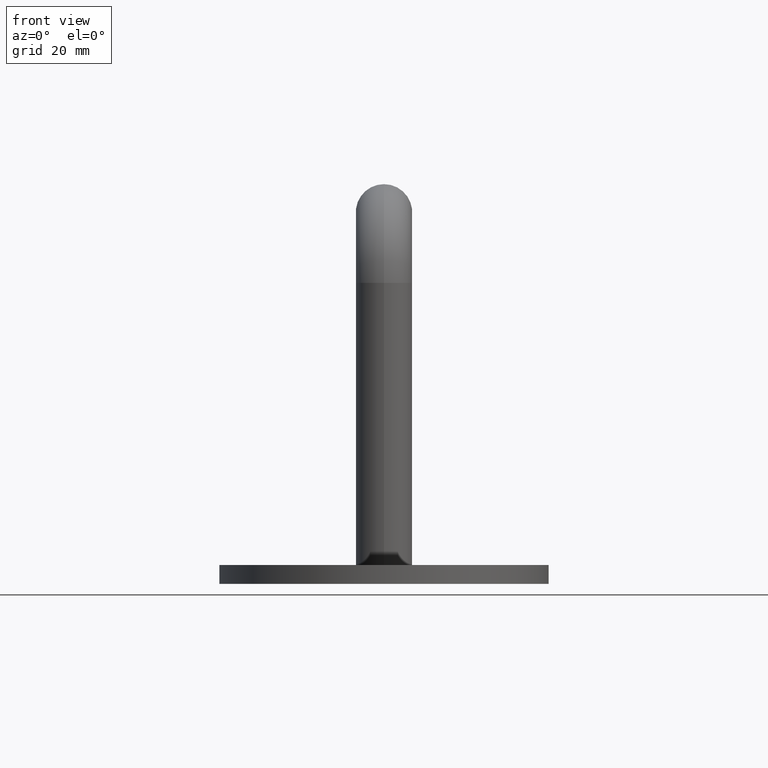
[diagram: clean part render]
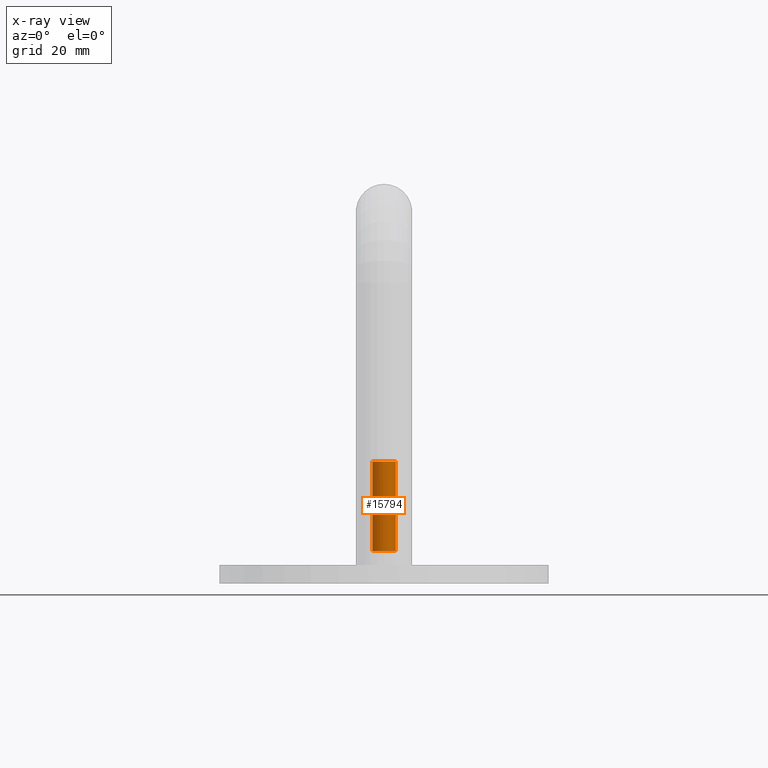
[diagram: x-ray — body ghosted, one internal face saturated and labeled with its STEP entity id]
A machine part, front view, then the same camera in x-ray: the body is ghosted and one INTERNAL B-rep face — a face not visible from any outside direction — is saturated and labeled: STEP entity #15794.
In plain terms, the highlighted cylindrical surface (edge-blend (fillet) strip) has radius 2.5 mm, axis along (-0, -0, -1).
Its self-contained STEP definition (entity closure, byte-faithful):
#99 = CARTESIAN_POINT ( 'NONE',  ( 0.000000000000000000, 0.000000000000000000, 3.000000000000009770 ) ) ;
#601 = CIRCLE ( 'NONE', #2816, 2.499999999999992895 ) ;
#1072 = AXIS2_PLACEMENT_3D ( 'NONE', #5715, #6964, #15582 ) ;
#1482 = VERTEX_POINT ( 'NONE', #16423 ) ;
#1523 = DIRECTION ( 'NONE',  ( 0.000000000000000000, 0.000000000000000000, 1.000000000000000000 ) ) ;
#2816 = AXIS2_PLACEMENT_3D ( 'NONE', #99, #1523, #15815 ) ;
#3683 = CIRCLE ( 'NONE', #1072, 2.499999999999994671 ) ;
#4253 = CARTESIAN_POINT ( 'NONE',  ( -2.499999999999992895, 0.000000000000000000, 3.000000000000009770 ) ) ;
#5020 = FACE_OUTER_BOUND ( 'NONE', #7866, .T. ) ;
#5124 = VERTEX_POINT ( 'NONE', #17115 ) ;
#5454 = ORIENTED_EDGE ( 'NONE', *, *, #17143, .T. ) ;
#5468 = DIRECTION ( 'NONE',  ( -0.000000000000000000, -0.000000000000000000, -1.000000000000000000 ) ) ;
#5686 = CYLINDRICAL_SURFACE ( 'NONE', #9461, 2.499999999999992895 ) ;
#5715 = CARTESIAN_POINT ( 'NONE',  ( 0.000000000000000000, 0.000000000000000000, 22.00000000000000000 ) ) ;
#6964 = DIRECTION ( 'NONE',  ( -0.000000000000000000, -0.000000000000000000, -1.000000000000000000 ) ) ;
#7866 = EDGE_LOOP ( 'NONE', ( #16270, #5454, #10049, #10561 ) ) ;
#7965 = VECTOR ( 'NONE', #12237, 1000.000000000000000 ) ;
#8472 = VERTEX_POINT ( 'NONE', #4253 ) ;
#9461 = AXIS2_PLACEMENT_3D ( 'NONE', #10160, #11571, #11637 ) ;
#10025 = EDGE_CURVE ( 'NONE', #5124, #8472, #17748, .T. ) ;
#10049 = ORIENTED_EDGE ( 'NONE', *, *, #16813, .F. ) ;
#10160 = CARTESIAN_POINT ( 'NONE',  ( 0.000000000000000000, 0.000000000000000000, 0.000000000000000000 ) ) ;
#10561 = ORIENTED_EDGE ( 'NONE', *, *, #10025, .F. ) ;
#10788 = VECTOR ( 'NONE', #5468, 1000.000000000000000 ) ;
#11244 = LINE ( 'NONE', #12609, #10788 ) ;
#11571 = DIRECTION ( 'NONE',  ( -0.000000000000000000, -0.000000000000000000, -1.000000000000000000 ) ) ;
#11637 = DIRECTION ( 'NONE',  ( -1.000000000000000000, 0.000000000000000000, 0.000000000000000000 ) ) ;
#12237 = DIRECTION ( 'NONE',  ( -0.000000000000000000, -0.000000000000000000, -1.000000000000000000 ) ) ;
#12609 = CARTESIAN_POINT ( 'NONE',  ( 2.499999999999992895, 3.061616997868373773E-16, 0.000000000000000000 ) ) ;
#15427 = VERTEX_POINT ( 'NONE', #16256 ) ;
#15582 = DIRECTION ( 'NONE',  ( -1.000000000000000000, 0.000000000000000000, 0.000000000000000000 ) ) ;
#15794 = ADVANCED_FACE ( 'NONE', ( #5020 ), #5686, .F. ) ;
#15815 = DIRECTION ( 'NONE',  ( -1.000000000000000000, 0.000000000000000000, 0.000000000000000000 ) ) ;
#16256 = CARTESIAN_POINT ( 'NONE',  ( 2.499999999999994671, 3.061616997868376732E-16, 22.00000000000000000 ) ) ;
#16270 = ORIENTED_EDGE ( 'NONE', *, *, #17533, .F. ) ;
#16423 = CARTESIAN_POINT ( 'NONE',  ( 2.499999999999992895, 4.898587196589408884E-16, 3.000000000000009770 ) ) ;
#16813 = EDGE_CURVE ( 'NONE', #8472, #1482, #601, .T. ) ;
#17115 = CARTESIAN_POINT ( 'NONE',  ( -2.499999999999994671, 0.000000000000000000, 22.00000000000000000 ) ) ;
#17143 = EDGE_CURVE ( 'NONE', #15427, #1482, #11244, .T. ) ;
#17533 = EDGE_CURVE ( 'NONE', #15427, #5124, #3683, .T. ) ;
#17748 = LINE ( 'NONE', #17817, #7965 ) ;
#17817 = CARTESIAN_POINT ( 'NONE',  ( -2.499999999999992895, 0.000000000000000000, 0.000000000000000000 ) ) ;